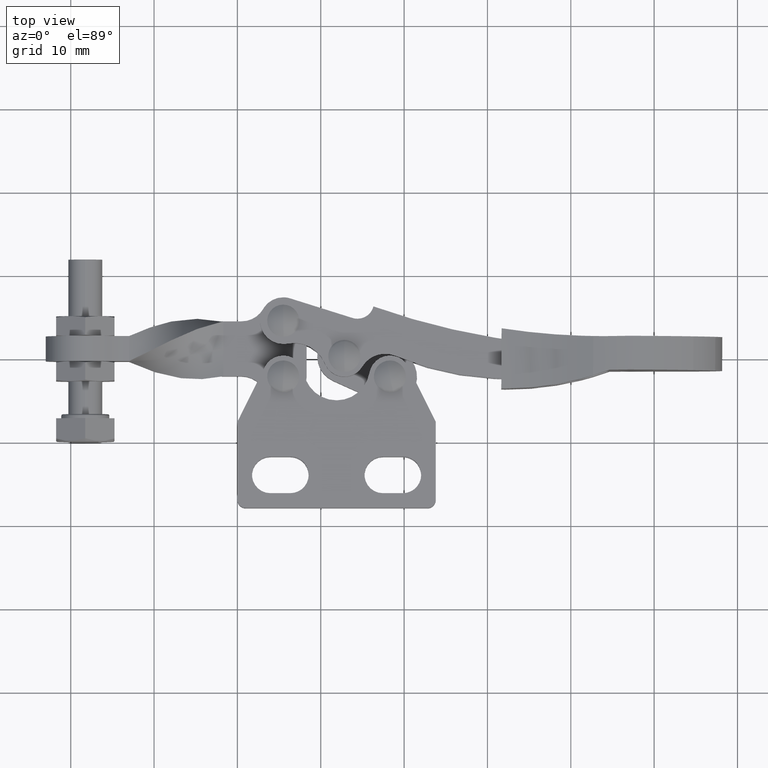
[diagram: clean part render]
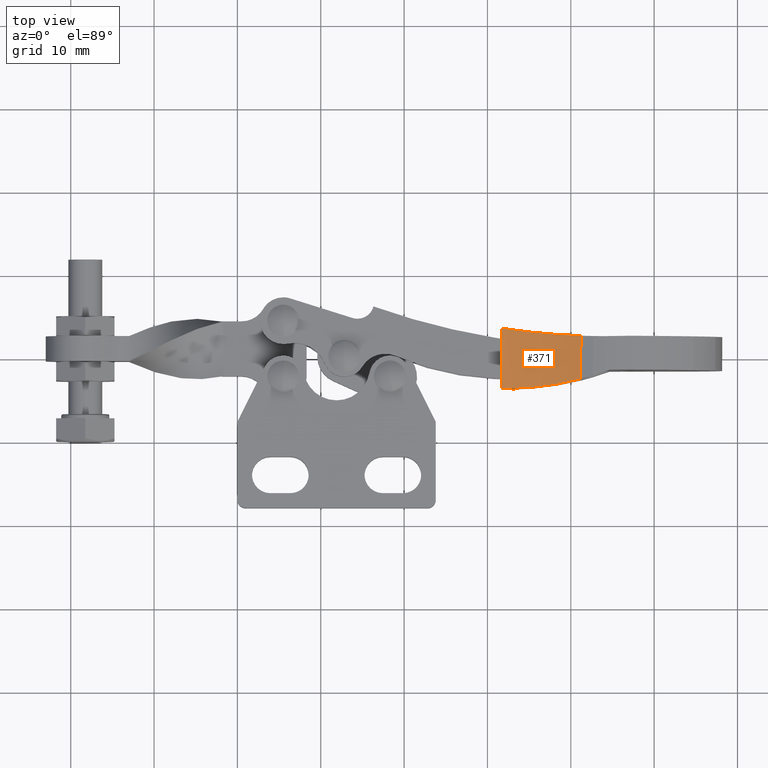
[diagram: same view with one face highlighted and labeled with its STEP entity id]
A machine part, top view. The second image highlights one B-rep face of the part: STEP entity #371.
In plain terms, the highlighted cylindrical surface (partial cylindrical patch) has radius 28.264 mm, axis along (0.0049, 1, 0).
Its self-contained STEP definition (entity closure, byte-faithful):
#153 = DIRECTION ( 'NONE',  ( 0.004931127191342707700, 0.9999878419184019500, 1.735405202594765700E-022 ) ) ;
#218 = CARTESIAN_POINT ( 'NONE',  ( 35.74371631611440100, 13.03080901157345300, 3.356792368360055800 ) ) ;
#285 = FACE_OUTER_BOUND ( 'NONE', #3459, .T. ) ;
#307 = CARTESIAN_POINT ( 'NONE',  ( 39.76101062193107800, 7.125187601318156500, 4.401500762740212700 ) ) ;
#354 = VERTEX_POINT ( 'NONE', #6307 ) ;
#371 = ADVANCED_FACE ( 'NONE', ( #285 ), #9411, .F. ) ;
#692 = ORIENTED_EDGE ( 'NONE', *, *, #2978, .F. ) ;
#944 = CARTESIAN_POINT ( 'NONE',  ( 39.70156294996823500, 12.69731095487154200, 4.333715831542186900 ) ) ;
#1722 = ORIENTED_EDGE ( 'NONE', *, *, #3548, .T. ) ;
#1867 = LINE ( 'NONE', #5302, #9509 ) ;
#2146 = CARTESIAN_POINT ( 'NONE',  ( 31.66014647689922900, 6.353469047029791200, 2.936523897291714900 ) ) ;
#2529 = LINE ( 'NONE', #4956, #4463 ) ;
#2570 = CARTESIAN_POINT ( 'NONE',  ( 40.48241992111948000, 7.287604515015356600, 4.656497376563666400 ) ) ;
#2978 = EDGE_CURVE ( 'NONE', #354, #7026, #3959, .T. ) ;
#2993 = CARTESIAN_POINT ( 'NONE',  ( 41.21551828783435000, 12.63783402015160300, 4.938980710330131500 ) ) ;
#3053 = CARTESIAN_POINT ( 'NONE',  ( 41.19003315158662600, 7.469679679679313000, 4.938980710330131500 ) ) ;
#3143 = EDGE_CURVE ( 'NONE', #4203, #354, #5895, .T. ) ;
#3149 = CARTESIAN_POINT ( 'NONE',  ( 31.69570709487372200, 13.56483964157241600, 2.936523897291710900 ) ) ;
#3298 = B_SPLINE_CURVE_WITH_KNOTS ( 'NONE', 3,
 ( #3149, #3870, #9040, #4598, #218, #5327, #944, #6050 ),
 .UNSPECIFIED., .F., .F.,
 ( 4, 2, 2, 4 ),
 ( 0.02480534219503079800, 0.02724759306949205500, 0.02968984394395331200, 0.03457434569287584600 ),
 .UNSPECIFIED. ) ;
#3459 = EDGE_LOOP ( 'NONE', ( #6814, #4587, #692, #5823, #1722 ) ) ;
#3548 = EDGE_CURVE ( 'NONE', #4203, #8421, #1867, .T. ) ;
#3819 = DIRECTION ( 'NONE',  ( 0.004931127191342707700, 0.9999878419184019500, 1.735405202594765700E-022 ) ) ;
#3870 = CARTESIAN_POINT ( 'NONE',  ( 32.50306921835821300, 13.43878978182738500, 2.964164175520207500 ) ) ;
#3879 = CARTESIAN_POINT ( 'NONE',  ( 33.70325155351765300, 6.340044251521011800, 3.037579917066878500 ) ) ;
#3959 = B_SPLINE_CURVE_WITH_KNOTS ( 'NONE', 3,
 ( #6751, #5146, #8853, #2146 ),
 .UNSPECIFIED., .F., .F.,
 ( 4, 4 ),
 ( 0.03319056818672962800, 0.03367726312901721900 ),
 .UNSPECIFIED. ) ;
#4203 = VERTEX_POINT ( 'NONE', #8043 ) ;
#4463 = VECTOR ( 'NONE', #9446, 1000.000000000000000 ) ;
#4587 = ORIENTED_EDGE ( 'NONE', *, *, #8955, .T. ) ;
#4598 = CARTESIAN_POINT ( 'NONE',  ( 34.93007059646971200, 13.12096126120997600, 3.222326210805070100 ) ) ;
#4956 = CARTESIAN_POINT ( 'NONE',  ( 31.66417734248552000, 7.170892005774259600, 2.936523897291709600 ) ) ;
#5146 = CARTESIAN_POINT ( 'NONE',  ( 31.98575871755809900, 6.348513530115528900, 2.949074128014813800 ) ) ;
#5302 = CARTESIAN_POINT ( 'NONE',  ( 41.18832817862029600, 7.123926635602942700, 4.938980710330131500 ) ) ;
#5327 = CARTESIAN_POINT ( 'NONE',  ( 38.14438695314360900, 12.80003185160662000, 3.861962088785966700 ) ) ;
#5823 = ORIENTED_EDGE ( 'NONE', *, *, #3143, .F. ) ;
#5895 = B_SPLINE_CURVE_WITH_KNOTS ( 'NONE', 3,
 ( #3053, #2570, #307, #8085, #8815, #7447, #3879, #8608 ),
 .UNSPECIFIED., .F., .F.,
 ( 4, 2, 2, 4 ),
 ( 0.02388161381825140000, 0.02620885241037096400, 0.02853609100249052500, 0.03319056818672962800 ),
 .UNSPECIFIED. ) ;
#6050 = CARTESIAN_POINT ( 'NONE',  ( 41.21551828783435000, 12.63783402015160300, 4.938980710330131500 ) ) ;
#6273 = VERTEX_POINT ( 'NONE', #8856 ) ;
#6307 = CARTESIAN_POINT ( 'NONE',  ( 32.14834714216340900, 6.347711776166167200, 2.957452629810651600 ) ) ;
#6751 = CARTESIAN_POINT ( 'NONE',  ( 32.14834714216340900, 6.347711776166167200, 2.957452629810651600 ) ) ;
#6764 = EDGE_CURVE ( 'NONE', #6273, #8421, #3298, .T. ) ;
#6814 = ORIENTED_EDGE ( 'NONE', *, *, #6764, .F. ) ;
#7026 = VERTEX_POINT ( 'NONE', #7722 ) ;
#7447 = CARTESIAN_POINT ( 'NONE',  ( 35.24498331106061500, 6.433950286737501600, 3.244941534618296600 ) ) ;
#7722 = CARTESIAN_POINT ( 'NONE',  ( 31.66014647689922900, 6.353469047029791200, 2.936523897291714900 ) ) ;
#8043 = CARTESIAN_POINT ( 'NONE',  ( 41.19003315158662600, 7.469679679679313000, 4.938980710330131500 ) ) ;
#8085 = CARTESIAN_POINT ( 'NONE',  ( 38.28930968366841400, 6.842946415425653400, 3.948143571351597500 ) ) ;
#8421 = VERTEX_POINT ( 'NONE', #2993 ) ;
#8599 = DIRECTION ( 'NONE',  ( -0.9999878419184019500, 0.004931127191342719900, 0.0000000000000000000 ) ) ;
#8608 = CARTESIAN_POINT ( 'NONE',  ( 32.14834714216340900, 6.347711776166167200, 2.957452629810651600 ) ) ;
#8815 = CARTESIAN_POINT ( 'NONE',  ( 37.53768626233278400, 6.722946228751922600, 3.749484344167970400 ) ) ;
#8836 = AXIS2_PLACEMENT_3D ( 'NONE', #8901, #3819, #8599 ) ;
#8853 = CARTESIAN_POINT ( 'NONE',  ( 31.82302534415237700, 6.350430444469494300, 2.942096325762772600 ) ) ;
#8856 = CARTESIAN_POINT ( 'NONE',  ( 31.69570709487372200, 13.56483964157241600, 2.936523897291710900 ) ) ;
#8901 = CARTESIAN_POINT ( 'NONE',  ( 30.69786146243282900, 7.175657090220099100, 31.18397758238002000 ) ) ;
#8955 = EDGE_CURVE ( 'NONE', #6273, #7026, #2529, .T. ) ;
#9040 = CARTESIAN_POINT ( 'NONE',  ( 33.31142813305817900, 13.32482777962005500, 3.026477166381893000 ) ) ;
#9411 = CYLINDRICAL_SURFACE ( 'NONE', #8836, 28.26397758238002900 ) ;
#9446 = DIRECTION ( 'NONE',  ( -0.004931127191342707700, -0.9999878419184019500, -1.735405202594765700E-022 ) ) ;
#9509 = VECTOR ( 'NONE', #153, 1000.000000000000000 ) ;